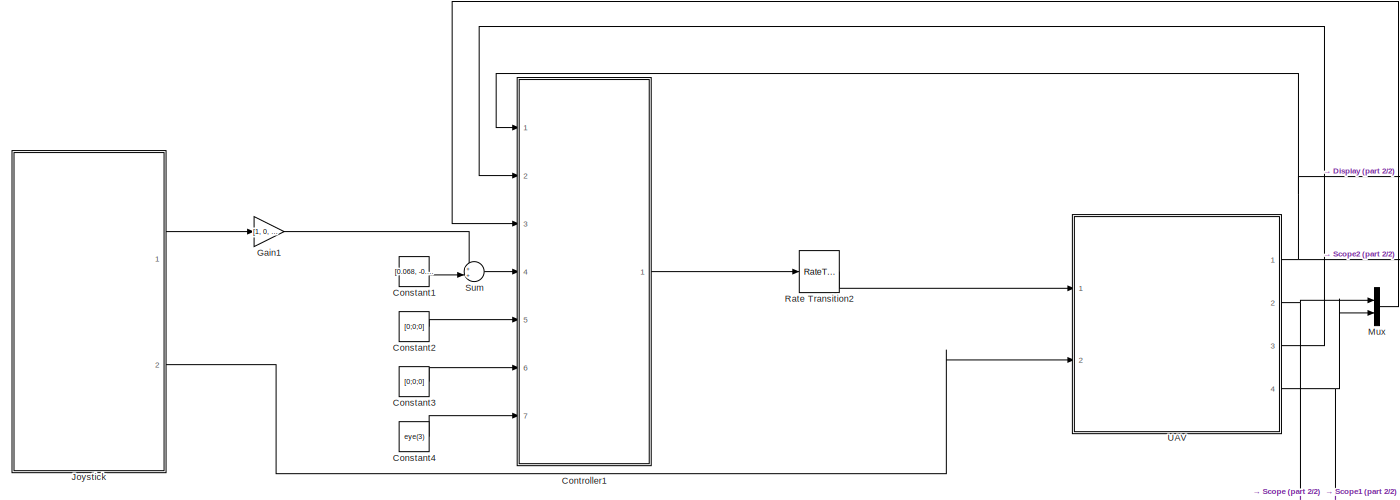
[diagram: root canvas - part 1/2, full width, middle band]
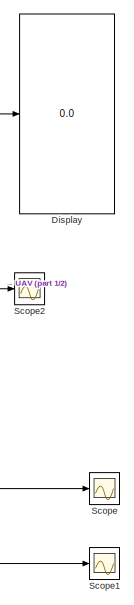
[diagram: root canvas - part 2/2, right side, full height]
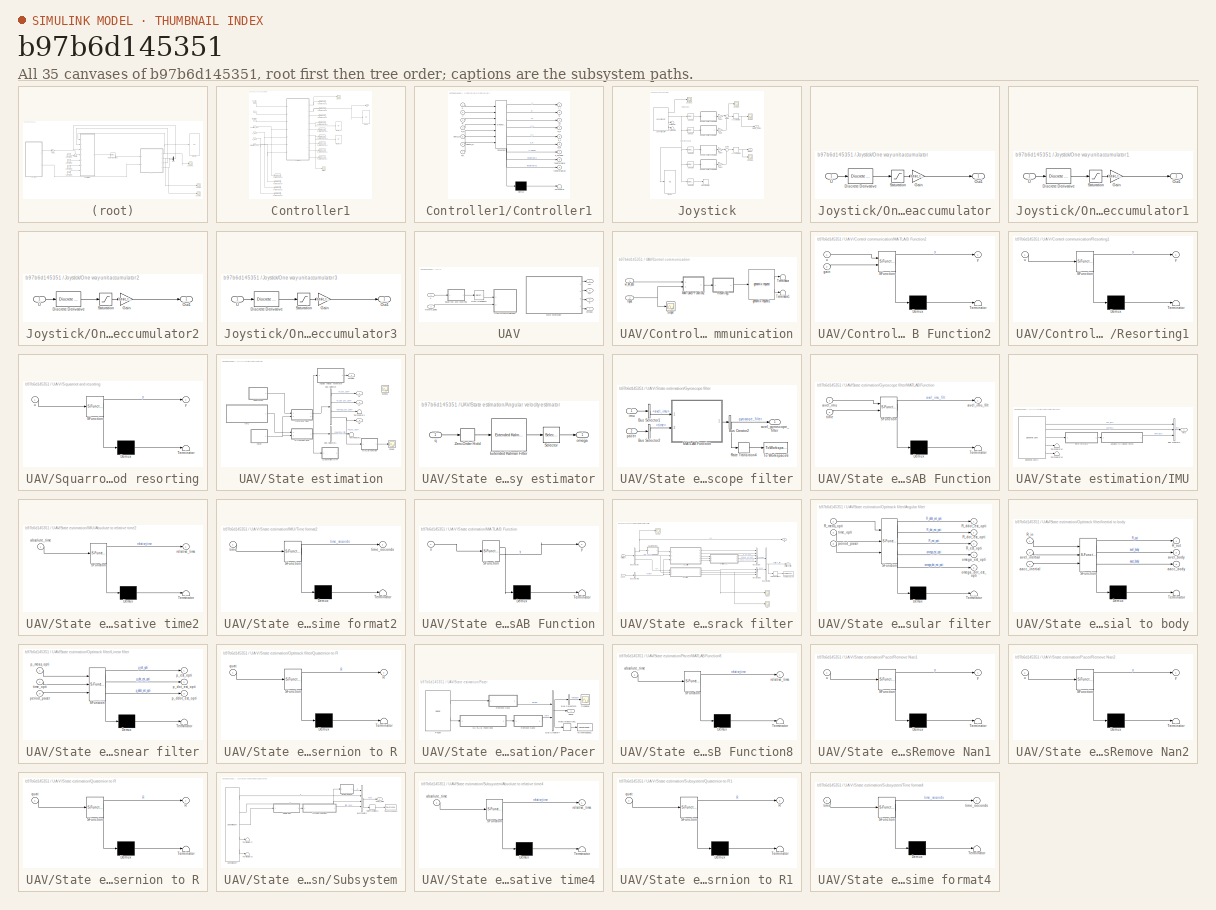
[diagram: thumbnail index - all 35 canvases of the model, root first then tree order]
MODEL slx_b97b6d145351
KIND model
CONFIG AbsTol = auto
CONFIG EnableMultiTasking = off
CONFIG FixedStep = auto
CONFIG MaxStep = auto
CONFIG MinStep = auto
CONFIG RelTol = 1e-3
CONFIG SampleTimeConstraint = Unconstrained
CONFIG SolverName = VariableStepAuto
CONFIG StartFcn = mikro.start('-a');
CONFIG StartTime = 0.0
CONFIG StopFcn = mikro.stop();
CONFIG StopTime = inf
BLOCK [Constant] Constant1
  Value = [0.068, -0.1036, 0.93]
BLOCK [Constant] Constant2
  Value = [0;0;0]
BLOCK [Constant] Constant3
  Value = [0;0;0]
BLOCK [Constant] Constant4
  Value = eye(3)
BLOCK [SubSystem] Controller1
  Ports = [7, 1]
  RequestExecContextInheritance = off
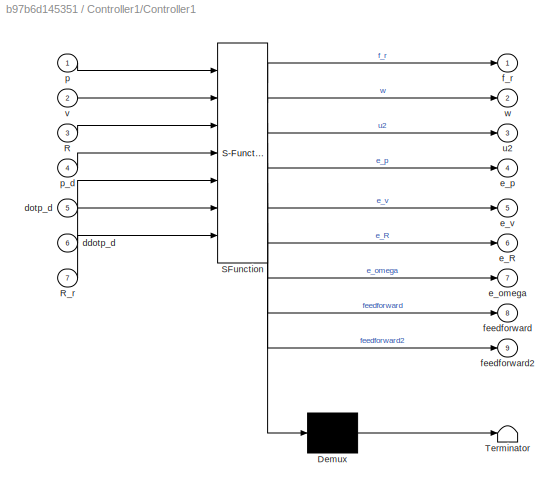
BLOCK [SubSystem] Controller1/Controller1
  ErrorFcn = Stateflow.Translate.translate
  PermitHierarchicalResolution = ExplicitOnly
  Ports = [7, 9]
  RequestExecContextInheritance = off
  SFBlockType = MATLAB Function
  TreatAsAtomicUnit = on
BLOCK [Demux] Controller1/Controller1/ Demux 
  Outputs = 1
  Ports = [1, 1]
BLOCK [S-Function] Controller1/Controller1/ SFunction 
  EnableBusSupport = on
  FunctionName = sf_sfun
  Parameters = F,J,K_R,K_p,K_v,K_w,g,m
  PortCounts = [7 10]
  Ports = [7, 10]
  SFcnIsStateOwnerBlock = off
  SFunctionDeploymentMode = off
  Tag = Stateflow S-Function 4
BLOCK [Terminator] Controller1/Controller1/ Terminator 
BLOCK [Inport] Controller1/Controller1/R
  Port = 3
BLOCK [Inport] Controller1/Controller1/R_r
  Port = 7
BLOCK [Inport] Controller1/Controller1/ddotp_d
  Port = 6
BLOCK [Inport] Controller1/Controller1/dotp_d
  Port = 5
BLOCK [Outport] Controller1/Controller1/e_R
  Port = 6
BLOCK [Outport] Controller1/Controller1/e_omega
  Port = 7
BLOCK [Outport] Controller1/Controller1/e_p
  Port = 4
BLOCK [Outport] Controller1/Controller1/e_v
  Port = 5
BLOCK [Outport] Controller1/Controller1/f_r
BLOCK [Outport] Controller1/Controller1/feedforward
  Port = 8
BLOCK [Outport] Controller1/Controller1/feedforward2
  Port = 9
BLOCK [Inport] Controller1/Controller1/p
BLOCK [Inport] Controller1/Controller1/p_d
  Port = 4
BLOCK [Outport] Controller1/Controller1/u2
  Port = 3
BLOCK [Inport] Controller1/Controller1/v
  Port = 2
BLOCK [Outport] Controller1/Controller1/w
  Port = 2
BLOCK [Display] Controller1/Display
  Decimation = 1
  Ports = [1]
BLOCK [Display] Controller1/Display1
  Decimation = 1
  Ports = [1]
BLOCK [Display] Controller1/Display2
  Decimation = 1
  Ports = [1]
BLOCK [Scope] Controller1/Error rot
  Floating = off
  NumInputPorts = 1
  Ports = [1]
  ScopeSpecificationString = Simulink.scopes.TimeScopeBlockCfg('CurrentConfiguration', extmgr.ConfigurationSet(extmgr.Configuration('Core','General UI',true),extmgr.Configuration('Core','Source UI',true),extmgr.Configuration('Sources','WiredSimulink',true,'DataLoggingVariableName','ScopeData1'),extmgr.Configuration('Visuals','Time Domain',true,'SerializedDisplays',{struct('MinYLimReal','-0.32443','MaxYLimReal','0.23175','YLab...<+1508ch>
BLOCK [Inport] Controller1/Orientation
  Port = 2
BLOCK [Inport] Controller1/Orientation_des
  Port = 7
BLOCK [Inport] Controller1/Position
BLOCK [Inport] Controller1/Position_des
  Port = 4
BLOCK [Scope] Controller1/Scope
  Floating = off
  NumInputPorts = 1
  Ports = [1]
  ScopeSpecificationString = Simulink.scopes.TimeScopeBlockCfg('CurrentConfiguration', extmgr.ConfigurationSet(extmgr.Configuration('Core','General UI',true),extmgr.Configuration('Core','Source UI',true),extmgr.Configuration('Sources','WiredSimulink',true,'DataLoggingVariableName','ScopeData6'),extmgr.Configuration('Visuals','Time Domain',true,'SerializedDisplays',{struct('MinYLimReal','-9.55411','MaxYLimReal','55.24448','YLa...<+1502ch>
BLOCK [ToWorkspace] Controller1/To Workspace1
  MaxDataPoints = inf
  Ports = [1]
  SampleTime = -1
  SaveFormat = Timeseries
  VariableName = f_r
BLOCK [ToWorkspace] Controller1/To Workspace11
  MaxDataPoints = inf
  Ports = [1]
  SampleTime = -1
  SaveFormat = Timeseries
  VariableName = e_p
BLOCK [ToWorkspace] Controller1/To Workspace13
  MaxDataPoints = inf
  Ports = [1]
  SampleTime = -1
  SaveFormat = Timeseries
  VariableName = e_v
BLOCK [ToWorkspace] Controller1/To Workspace14
  MaxDataPoints = inf
  Ports = [1]
  SampleTime = -1
  SaveFormat = Timeseries
  VariableName = e_R
BLOCK [ToWorkspace] Controller1/To Workspace15
  MaxDataPoints = inf
  Ports = [1]
  SampleTime = -1
  SaveFormat = Timeseries
  VariableName = e_omega
BLOCK [ToWorkspace] Controller1/To Workspace16
  MaxDataPoints = inf
  Ports = [1]
  SampleTime = -1
  SaveFormat = Timeseries
  VariableName = feedforward
BLOCK [ToWorkspace] Controller1/To Workspace17
  MaxDataPoints = inf
  Ports = [1]
  SampleTime = -1
  SaveFormat = Timeseries
  VariableName = feedforward2
BLOCK [ToWorkspace] Controller1/To Workspace2
  FixptAsFi = on
  MaxDataPoints = inf
  Ports = [1]
  SampleTime = -1
  SaveFormat = Timeseries
  VariableName = des_pd
BLOCK [ToWorkspace] Controller1/To Workspace3
  FixptAsFi = on
  MaxDataPoints = inf
  Ports = [1]
  SampleTime = -1
  SaveFormat = Timeseries
  VariableName = des_pdd
BLOCK [ToWorkspace] Controller1/To Workspace4
  FixptAsFi = on
  MaxDataPoints = inf
  Ports = [1]
  SampleTime = -1
  SaveFormat = Timeseries
  VariableName = ref_R
BLOCK [ToWorkspace] Controller1/To Workspace5
  MaxDataPoints = inf
  Ports = [1]
  SampleTime = -1
  SaveFormat = Timeseries
  VariableName = u1
BLOCK [ToWorkspace] Controller1/To Workspace6
  MaxDataPoints = inf
  Ports = [1]
  SampleTime = -1
  SaveFormat = Timeseries
  VariableName = u2
BLOCK [ToWorkspace] Controller1/To Workspace9
  FixptAsFi = on
  MaxDataPoints = inf
  Ports = [1]
  SampleTime = -1
  SaveFormat = Timeseries
  VariableName = des_p
BLOCK [Inport] Controller1/a_des
  Port = 6
BLOCK [Inport] Controller1/v
  Port = 3
BLOCK [Inport] Controller1/v_des
  Port = 5
BLOCK [Outport] Controller1/w* 
BLOCK [Display] Display
  Decimation = 1
  Ports = [1]
BLOCK [Gain] Gain1
  Gain = [1, 0, 0]
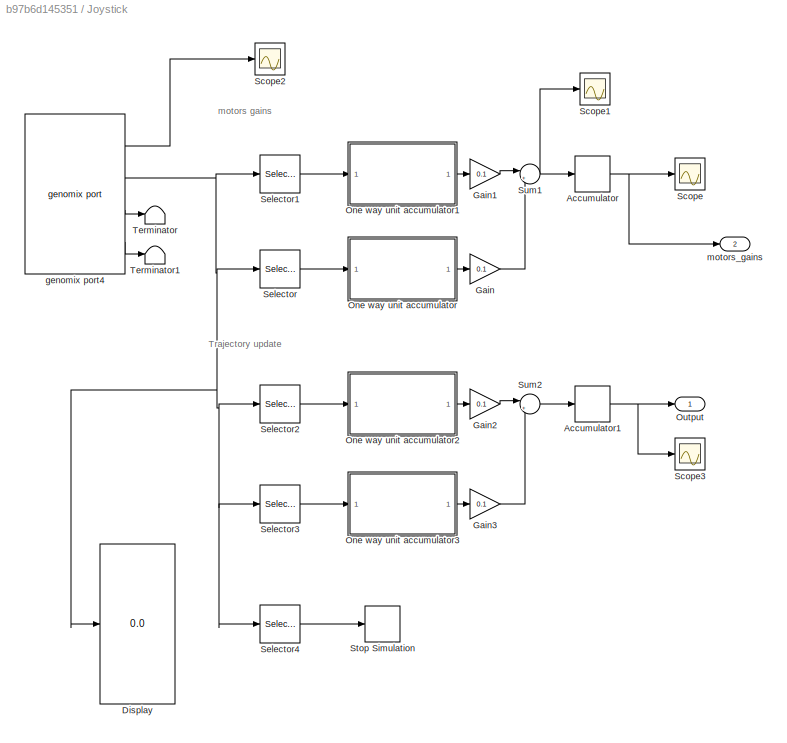
BLOCK [SubSystem] Joystick
  Ports = [0, 2]
  RequestExecContextInheritance = off
BLOCK [DiscreteIntegrator] Joystick/Accumulator
  ICPrevOutput = DiscIntNeverNeededParam
  ICPrevScaledInput = DiscIntNeverNeededParam
  InitialConditionSetting = Auto
  IntegratorMethod = Accumulation: Forward Euler
  LimitOutput = on
  LowerSaturationLimit = 0
  Ports = [1, 1]
  SampleTime = -1
  UpperSaturationLimit = 1
  gainval = 1
BLOCK [DiscreteIntegrator] Joystick/Accumulator1
  ICPrevOutput = DiscIntNeverNeededParam
  ICPrevScaledInput = DiscIntNeverNeededParam
  InitialConditionSetting = Auto
  IntegratorMethod = Accumulation: Forward Euler
  LimitOutput = on
  LowerSaturationLimit = -1
  Ports = [1, 1]
  SampleTime = -1
  UpperSaturationLimit = 1
  gainval = 1
BLOCK [Display] Joystick/Display
  Decimation = 1
  Ports = [1]
BLOCK [Gain] Joystick/Gain
  Gain = 0.1
BLOCK [Gain] Joystick/Gain1
  Gain = 0.1
BLOCK [Gain] Joystick/Gain2
  Gain = 0.1
BLOCK [Gain] Joystick/Gain3
  Gain = 0.1
BLOCK [SubSystem] Joystick/One way unit accumulator
  Ports = [1, 1]
  RequestExecContextInheritance = off
BLOCK [Reference] Joystick/One way unit accumulator/Discrete Derivative  REF=simulink/Discrete/Discrete Derivative
  Ports = [1, 1]
  SourceBlock = simulink/Discrete/Discrete Derivative
  SourceProductBaseCode = SL
  SourceType = Discrete Derivative
BLOCK [Gain] Joystick/One way unit accumulator/Gain
  Gain = basic_time_step
BLOCK [Outport] Joystick/One way unit accumulator/Out1
BLOCK [Saturate] Joystick/One way unit accumulator/Saturation
  LowerLimit = 0
  UpperLimit = inf
BLOCK [Inport] Joystick/One way unit accumulator/U
BLOCK [SubSystem] Joystick/One way unit accumulator1
  Ports = [1, 1]
  RequestExecContextInheritance = off
BLOCK [Reference] Joystick/One way unit accumulator1/Discrete Derivative  REF=simulink/Discrete/Discrete Derivative
  Ports = [1, 1]
  SourceBlock = simulink/Discrete/Discrete Derivative
  SourceProductBaseCode = SL
  SourceType = Discrete Derivative
BLOCK [Gain] Joystick/One way unit accumulator1/Gain
  Gain = basic_time_step
BLOCK [Outport] Joystick/One way unit accumulator1/Out1
BLOCK [Saturate] Joystick/One way unit accumulator1/Saturation
  LowerLimit = 0
  UpperLimit = inf
BLOCK [Inport] Joystick/One way unit accumulator1/U
BLOCK [SubSystem] Joystick/One way unit accumulator2
  Ports = [1, 1]
  RequestExecContextInheritance = off
BLOCK [Reference] Joystick/One way unit accumulator2/Discrete Derivative  REF=simulink/Discrete/Discrete Derivative
  Ports = [1, 1]
  SourceBlock = simulink/Discrete/Discrete Derivative
  SourceProductBaseCode = SL
  SourceType = Discrete Derivative
BLOCK [Gain] Joystick/One way unit accumulator2/Gain
  Gain = basic_time_step
BLOCK [Outport] Joystick/One way unit accumulator2/Out1
BLOCK [Saturate] Joystick/One way unit accumulator2/Saturation
  LowerLimit = 0
  UpperLimit = inf
BLOCK [Inport] Joystick/One way unit accumulator2/U
BLOCK [SubSystem] Joystick/One way unit accumulator3
  Ports = [1, 1]
  RequestExecContextInheritance = off
BLOCK [Reference] Joystick/One way unit accumulator3/Discrete Derivative  REF=simulink/Discrete/Discrete Derivative
  Ports = [1, 1]
  SourceBlock = simulink/Discrete/Discrete Derivative
  SourceProductBaseCode = SL
  SourceType = Discrete Derivative
BLOCK [Gain] Joystick/One way unit accumulator3/Gain
  Gain = basic_time_step
BLOCK [Outport] Joystick/One way unit accumulator3/Out1
BLOCK [Saturate] Joystick/One way unit accumulator3/Saturation
  LowerLimit = 0
  UpperLimit = inf
BLOCK [Inport] Joystick/One way unit accumulator3/U
BLOCK [Outport] Joystick/Output
BLOCK [Scope] Joystick/Scope
  Floating = off
  NumInputPorts = 1
  Ports = [1]
  ScopeSpecificationString = Simulink.scopes.TimeScopeBlockCfg('CurrentConfiguration', extmgr.ConfigurationSet(extmgr.Configuration('Core','General UI',true),extmgr.Configuration('Core','Source UI',true),extmgr.Configuration('Sources','WiredSimulink',true,'DataLoggingVariableName','ScopeData2'),extmgr.Configuration('Visuals','Time Domain',true,'SerializedDisplays',{struct('MinYLimReal','-0.05','MaxYLimReal','0.45','YLabelReal...<+1459ch>
BLOCK [Scope] Joystick/Scope1
  Floating = off
  NumInputPorts = 1
  Ports = [1]
  ScopeSpecificationString = Simulink.scopes.TimeScopeBlockCfg('CurrentConfiguration', extmgr.ConfigurationSet(extmgr.Configuration('Core','General UI',true),extmgr.Configuration('Core','Source UI',true),extmgr.Configuration('Sources','WiredSimulink',true,'DataLoggingVariableName','ScopeData3'),extmgr.Configuration('Visuals','Time Domain',true,'SerializedDisplays',{struct('MinYLimReal','-0.0125','MaxYLimReal','0.1125','YLabel...<+1464ch>
BLOCK [Scope] Joystick/Scope2
  Floating = off
  NumInputPorts = 1
  Ports = [1]
  ScopeSpecificationString = Simulink.scopes.TimeScopeBlockCfg('CurrentConfiguration', extmgr.ConfigurationSet(extmgr.Configuration('Core','General UI',true),extmgr.Configuration('Core','Source UI',true),extmgr.Configuration('Sources','WiredSimulink',true,'DataLoggingVariableName','ScopeData4'),extmgr.Configuration('Visuals','Time Domain',true,'SerializedDisplays',{struct('MinYLimReal','-36864.00000','MaxYLimReal','4096.00000...<+1819ch>
BLOCK [Scope] Joystick/Scope3
  Floating = off
  NumInputPorts = 1
  Ports = [1]
  ScopeSpecificationString = Simulink.scopes.TimeScopeBlockCfg('CurrentConfiguration', extmgr.ConfigurationSet(extmgr.Configuration('Core','General UI',true),extmgr.Configuration('Core','Source UI',true),extmgr.Configuration('Sources','WiredSimulink',true,'DataLoggingVariableName','ScopeData5'),extmgr.Configuration('Visuals','Time Domain',true,'SerializedDisplays',{struct('MinYLimReal','-1.00000','MaxYLimReal','1.00000','YLab...<+1478ch>
BLOCK [Selector] Joystick/Selector
  IndexOptions = Index vector (dialog)
  Indices = [1]
  InputPortWidth = 16
  OutputSizes = 1
  Ports = [1, 1]
BLOCK [Selector] Joystick/Selector1
  IndexOptions = Index vector (dialog)
  Indices = [2]
  InputPortWidth = 16
  OutputSizes = 1
  Ports = [1, 1]
BLOCK [Selector] Joystick/Selector2
  IndexOptions = Index vector (dialog)
  Indices = [4]
  InputPortWidth = 16
  OutputSizes = 1
  Ports = [1, 1]
BLOCK [Selector] Joystick/Selector3
  IndexOptions = Index vector (dialog)
  Indices = [3]
  InputPortWidth = 16
  OutputSizes = 1
  Ports = [1, 1]
BLOCK [Selector] Joystick/Selector4
  IndexOptions = Index vector (dialog)
  Indices = [6]
  InputPortWidth = 16
  OutputSizes = 1
  Ports = [1, 1]
BLOCK [Stop] Joystick/Stop Simulation
BLOCK [Sum] Joystick/Sum1
  Inputs = |+-
  Ports = [2, 1]
BLOCK [Sum] Joystick/Sum2
  Inputs = |+-
  Ports = [2, 1]
BLOCK [Terminator] Joystick/Terminator
BLOCK [Terminator] Joystick/Terminator1
BLOCK [Reference] Joystick/genomix port4  REF=genomix/genomix port
  AttributesFormatString = joystick/device
  Ports = [0, 4]
  SourceBlock = genomix/genomix port
  SourceProductName = genomix
  SourceType = genomix port
  UserDataPersistent = on
BLOCK [Outport] Joystick/motors_gains
  Port = 2
BLOCK [Mux] Mux
  DisplayOption = bar
  Inputs = 2
  Ports = [2, 1]
BLOCK [RateTransition] Rate Transition2
  Integrity = off
BLOCK [Scope] Scope
  Floating = off
  NumInputPorts = 1
  Ports = [1]
  ScopeSpecificationString = Simulink.scopes.TimeScopeBlockCfg('CurrentConfiguration', extmgr.ConfigurationSet(extmgr.Configuration('Core','General UI',true),extmgr.Configuration('Core','Source UI',true),extmgr.Configuration('Sources','WiredSimulink',true,'DataLoggingVariableName','ScopeData6'),extmgr.Configuration('Visuals','Time Domain',true,'SerializedDisplays',{struct('MinYLimReal','-2.01398','MaxYLimReal','1.99268','YLab...<+1525ch>
BLOCK [Scope] Scope1
  Floating = off
  NumInputPorts = 1
  Ports = [1]
  ScopeSpecificationString = Simulink.scopes.TimeScopeBlockCfg('CurrentConfiguration', extmgr.ConfigurationSet(extmgr.Configuration('Core','General UI',true),extmgr.Configuration('Core','Source UI',true),extmgr.Configuration('Sources','WiredSimulink',true,'DataLoggingVariableName','ScopeData8'),extmgr.Configuration('Visuals','Time Domain',true,'SerializedDisplays',{struct('MinYLimReal','-2.51598','MaxYLimReal','2.13346','YLab...<+1493ch>
BLOCK [Scope] Scope2
  Floating = off
  NumInputPorts = 1
  Ports = [1]
  ScopeSpecificationString = Simulink.scopes.TimeScopeBlockCfg('CurrentConfiguration', extmgr.ConfigurationSet(extmgr.Configuration('Core','General UI',true),extmgr.Configuration('Core','Source UI',true),extmgr.Configuration('Sources','WiredSimulink',true,'DataLoggingVariableName','ScopeData1'),extmgr.Configuration('Visuals','Time Domain',true,'SerializedDisplays',{struct('MinYLimReal','-0.46462','MaxYLimReal','1.12931','YLab...<+1467ch>
BLOCK [Sum] Sum
  Inputs = ++|
  Ports = [2, 1]
BLOCK [SubSystem] UAV
  Ports = [2, 4]
  RequestExecContextInheritance = off
BLOCK [Outport] UAV/<p>
BLOCK [Outport] UAV/<v>
  Port = 2
BLOCK [SubSystem] UAV/Control communication
  Ports = [2]
  RequestExecContextInheritance = off
BLOCK [Inport] UAV/Control communication/Input
  Port = 2
BLOCK [SubSystem] UAV/Control communication/MATLAB Function2
  ErrorFcn = Stateflow.Translate.translate
  PermitHierarchicalResolution = ExplicitOnly
  Ports = [2, 1]
  RequestExecContextInheritance = off
  SFBlockType = MATLAB Function
  TreatAsAtomicUnit = on
BLOCK [Demux] UAV/Control communication/MATLAB Function2/ Demux 
  Outputs = 1
  Ports = [1, 1]
BLOCK [S-Function] UAV/Control communication/MATLAB Function2/ SFunction 
  EnableBusSupport = on
  FunctionName = sf_sfun
  PortCounts = [2 2]
  Ports = [2, 2]
  SFcnIsStateOwnerBlock = off
  SFunctionDeploymentMode = off
  Tag = Stateflow S-Function 5
BLOCK [Terminator] UAV/Control communication/MATLAB Function2/ Terminator 
BLOCK [Inport] UAV/Control communication/MATLAB Function2/gain
  Port = 2
BLOCK [Inport] UAV/Control communication/MATLAB Function2/u
BLOCK [Outport] UAV/Control communication/MATLAB Function2/y
BLOCK [SubSystem] UAV/Control communication/Resorting1
  ErrorFcn = Stateflow.Translate.translate
  PermitHierarchicalResolution = ExplicitOnly
  Ports = [1, 1]
  RequestExecContextInheritance = off
  SFBlockType = MATLAB Function
  TreatAsAtomicUnit = on
BLOCK [Demux] UAV/Control communication/Resorting1/ Demux 
  Outputs = 1
  Ports = [1, 1]
BLOCK [S-Function] UAV/Control communication/Resorting1/ SFunction 
  EnableBusSupport = on
  FunctionName = sf_sfun
  PortCounts = [1 2]
  Ports = [1, 2]
  SFcnIsStateOwnerBlock = off
  SFunctionDeploymentMode = off
  Tag = Stateflow S-Function 16
BLOCK [Terminator] UAV/Control communication/Resorting1/ Terminator 
BLOCK [Inport] UAV/Control communication/Resorting1/u
BLOCK [Outport] UAV/Control communication/Resorting1/y
BLOCK [Scope] UAV/Control communication/Scope
  Floating = off
  NumInputPorts = 1
  Ports = [1]
  ScopeSpecificationString = Simulink.scopes.TimeScopeBlockCfg('CurrentConfiguration', extmgr.ConfigurationSet(extmgr.Configuration('Core','General UI',true),extmgr.Configuration('Core','Source UI',true),extmgr.Configuration('Sources','WiredSimulink',true,'DataLoggingVariableName','ScopeData7'),extmgr.Configuration('Visuals','Time Domain',true,'SerializedDisplays',{struct('MinYLimReal','-0.05','MaxYLimReal','0.45','YLabelReal...<+1449ch>
BLOCK [Terminator] UAV/Control communication/Terminator
BLOCK [Terminator] UAV/Control communication/Terminator1
BLOCK [Reference] UAV/Control communication/genomix request1  REF=genomix/genomix request
  AttributesFormatString = rotorcraft/set_velocity
  Ports = [1, 2]
  SourceBlock = genomix/genomix request
  SourceProductName = genomix
  SourceType = genomix request
  UserDataPersistent = on
BLOCK [Inport] UAV/Control communication/w_M_des
BLOCK [Outport] UAV/R
  Port = 3
BLOCK [RateTransition] UAV/Rate Transition2
  Deterministic = off
  InitialCondition = [0 0 0 0 0 0]
BLOCK [SubSystem] UAV/Squarroot and resorting
  ErrorFcn = Stateflow.Translate.translate
  PermitHierarchicalResolution = ExplicitOnly
  Ports = [1, 1]
  RequestExecContextInheritance = off
  SFBlockType = MATLAB Function
  TreatAsAtomicUnit = on
BLOCK [Demux] UAV/Squarroot and resorting/ Demux 
  Outputs = 1
  Ports = [1, 1]
BLOCK [S-Function] UAV/Squarroot and resorting/ SFunction 
  EnableBusSupport = on
  FunctionName = sf_sfun
  PortCounts = [1 2]
  Ports = [1, 2]
  SFcnIsStateOwnerBlock = off
  SFunctionDeploymentMode = off
  Tag = Stateflow S-Function 3
BLOCK [Terminator] UAV/Squarroot and resorting/ Terminator 
BLOCK [Inport] UAV/Squarroot and resorting/u
BLOCK [Outport] UAV/Squarroot and resorting/y
BLOCK [SubSystem] UAV/State estimation
  Ports = [0, 4]
  RequestExecContextInheritance = off
BLOCK [SubSystem] UAV/State estimation/Angular velocity estimator
  Ports = [1, 1]
  RequestExecContextInheritance = off
BLOCK [Reference] UAV/State estimation/Angular velocity estimator/Extended Kalman Filter  REF=sharedTrackingLibrary/Extended Kalman Filter
  Ports = [1, 1]
  SourceBlock = sharedTrackingLibrary/Extended Kalman Filter
  SourceProductBaseCode = CT,DR,TF,ID,LP,NV,AR,RO,RR,UV,VE
  SourceType = Extended Kalman Filter
BLOCK [Selector] UAV/State estimation/Angular velocity estimator/Selector
  IndexOptions = Index vector (dialog)
  Indices = [5 6 7]
  InputPortWidth = 7
  OutputSizes = 1
  Ports = [1, 1]
BLOCK [ZeroOrderHold] UAV/State estimation/Angular velocity estimator/Zero-Order Hold
  SampleTime = 0.01
BLOCK [Outport] UAV/State estimation/Angular velocity estimator/omega
BLOCK [Inport] UAV/State estimation/Angular velocity estimator/q
BLOCK [BusSelector] UAV/State estimation/Bus Selector
  OutputSignals = linear.p_est_opti,linear.p_dot_est_opti,angular.omega_est_opti,angular.R_est_opti
  Ports = [1, 4]
BLOCK [BusSelector] UAV/State estimation/Bus Selector1
  OutputSignals = avel_imu_filt
  Ports = [1, 1]
BLOCK [SubSystem] UAV/State estimation/Gyroscope filter
  Ports = [2, 1]
  RequestExecContextInheritance = off
BLOCK [BusCreator] UAV/State estimation/Gyroscope filter/Bus Creator2
  DisplayOption = bar
  InheritFromInputs = on
  Inputs = 1
  Ports = [1, 1]
BLOCK [BusSelector] UAV/State estimation/Gyroscope filter/Bus Selector1
  OutputSignals = avel_imu
  Ports = [1, 1]
BLOCK [BusSelector] UAV/State estimation/Gyroscope filter/Bus Selector2
  OutputSignals = time
  Ports = [1, 1]
BLOCK [SubSystem] UAV/State estimation/Gyroscope filter/MATLAB Function
  ErrorFcn = Stateflow.Translate.translate
  PermitHierarchicalResolution = ExplicitOnly
  Ports = [2, 1]
  RequestExecContextInheritance = off
  SFBlockType = MATLAB Function
  TreatAsAtomicUnit = on
BLOCK [Demux] UAV/State estimation/Gyroscope filter/MATLAB Function/ Demux 
  Outputs = 1
  Ports = [1, 1]
BLOCK [S-Function] UAV/State estimation/Gyroscope filter/MATLAB Function/ SFunction 
  EnableBusSupport = on
  FunctionName = sf_sfun
  PortCounts = [2 2]
  Ports = [2, 2]
  SFcnIsStateOwnerBlock = off
  SFunctionDeploymentMode = off
  Tag = Stateflow S-Function 32
BLOCK [Terminator] UAV/State estimation/Gyroscope filter/MATLAB Function/ Terminator 
BLOCK [Inport] UAV/State estimation/Gyroscope filter/MATLAB Function/avel_imu
BLOCK [Outport] UAV/State estimation/Gyroscope filter/MATLAB Function/avel_imu_filt
  VectorParamsAs1DForOutWhenUnconnected = off
BLOCK [Inport] UAV/State estimation/Gyroscope filter/MATLAB Function/time
  Port = 2
BLOCK [RateTransition] UAV/State estimation/Gyroscope filter/Rate Transition4
  InitialCondition = -1
  OutPortSampleTime = init.log_time_step
BLOCK [ToWorkspace] UAV/State estimation/Gyroscope filter/To Workspace6
  FixptAsFi = on
  MaxDataPoints = inf
  Ports = [1]
  SampleTime = init.log_time_step
  SaveFormat = Timeseries
  VariableName = gyroscope_filter
BLOCK [Outport] UAV/State estimation/Gyroscope filter/avel_gyroscope_filter
  VectorParamsAs1DForOutWhenUnconnected = off
BLOCK [Inport] UAV/State estimation/Gyroscope filter/imu
BLOCK [Inport] UAV/State estimation/Gyroscope filter/pacer
  Port = 2
BLOCK [SubSystem] UAV/State estimation/IMU
  Ports = [0, 1]
  RequestExecContextInheritance = off
BLOCK [SubSystem] UAV/State estimation/IMU/Absolute to relative time2
  ErrorFcn = Stateflow.Translate.translate
  PermitHierarchicalResolution = ExplicitOnly
  Ports = [1, 1]
  RequestExecContextInheritance = off
  SFBlockType = MATLAB Function
  TreatAsAtomicUnit = on
BLOCK [Demux] UAV/State estimation/IMU/Absolute to relative time2/ Demux 
  Outputs = 1
  Ports = [1, 1]
BLOCK [S-Function] UAV/State estimation/IMU/Absolute to relative time2/ SFunction 
  EnableBusSupport = on
  FunctionName = sf_sfun
  PortCounts = [1 2]
  Ports = [1, 2]
  SFcnIsStateOwnerBlock = off
  SFunctionDeploymentMode = off
  Tag = Stateflow S-Function 8
BLOCK [Terminator] UAV/State estimation/IMU/Absolute to relative time2/ Terminator 
BLOCK [Inport] UAV/State estimation/IMU/Absolute to relative time2/absolute_time
BLOCK [Outport] UAV/State estimation/IMU/Absolute to relative time2/relative_time
  VectorParamsAs1DForOutWhenUnconnected = off
BLOCK [BusCreator] UAV/State estimation/IMU/Bus Creator2
  DisplayOption = bar
  InheritFromInputs = on
  Inputs = 3
  Ports = [3, 1]
BLOCK [Terminator] UAV/State estimation/IMU/Terminator12
BLOCK [Terminator] UAV/State estimation/IMU/Terminator13
BLOCK [SubSystem] UAV/State estimation/IMU/Time format2
  ErrorFcn = Stateflow.Translate.translate
  PermitHierarchicalResolution = ExplicitOnly
  Ports = [1, 1]
  RequestExecContextInheritance = off
  SFBlockType = MATLAB Function
  TreatAsAtomicUnit = on
BLOCK [Demux] UAV/State estimation/IMU/Time format2/ Demux 
  Outputs = 1
  Ports = [1, 1]
BLOCK [S-Function] UAV/State estimation/IMU/Time format2/ SFunction 
  EnableBusSupport = on
  FunctionName = sf_sfun
  PortCounts = [1 2]
  Ports = [1, 2]
  SFcnIsStateOwnerBlock = off
  SFunctionDeploymentMode = off
  Tag = Stateflow S-Function 2
BLOCK [Terminator] UAV/State estimation/IMU/Time format2/ Terminator 
BLOCK [Inport] UAV/State estimation/IMU/Time format2/time
BLOCK [Outport] UAV/State estimation/IMU/Time format2/time_seconds
  VectorParamsAs1DForOutWhenUnconnected = off
BLOCK [Reference] UAV/State estimation/IMU/genomix port1  REF=genomix/genomix port
  AttributesFormatString = rotorcraft/imu
  Ports = [0, 5]
  SourceBlock = genomix/genomix port
  SourceProductName = genomix
  SourceType = genomix port
  UserDataPersistent = on
BLOCK [Outport] UAV/State estimation/IMU/imu
BLOCK [SubSystem] UAV/State estimation/MATLAB Function
  ErrorFcn = Stateflow.Translate.translate
  PermitHierarchicalResolution = ExplicitOnly
  Ports = [1, 1]
  RequestExecContextInheritance = off
  SFBlockType = MATLAB Function
  TreatAsAtomicUnit = on
BLOCK [Demux] UAV/State estimation/MATLAB Function/ Demux 
  Outputs = 1
  Ports = [1, 1]
BLOCK [S-Function] UAV/State estimation/MATLAB Function/ SFunction 
  EnableBusSupport = on
  FunctionName = sf_sfun
  PortCounts = [1 2]
  Ports = [1, 2]
  SFcnIsStateOwnerBlock = off
  SFunctionDeploymentMode = off
  Tag = Stateflow S-Function 12
BLOCK [Terminator] UAV/State estimation/MATLAB Function/ Terminator 
BLOCK [Inport] UAV/State estimation/MATLAB Function/u
BLOCK [Outport] UAV/State estimation/MATLAB Function/y
BLOCK [SubSystem] UAV/State estimation/Optitrack filter
  Ports = [2, 2]
  RequestExecContextInheritance = off
BLOCK [SubSystem] UAV/State estimation/Optitrack filter/Angular filter
  ErrorFcn = Stateflow.Translate.translate
  PermitHierarchicalResolution = ExplicitOnly
  Ports = [3, 5]
  RequestExecContextInheritance = off
  SFBlockType = MATLAB Function
  TreatAsAtomicUnit = on
BLOCK [Demux] UAV/State estimation/Optitrack filter/Angular filter/ Demux 
  Outputs = 1
  Ports = [1, 1]
BLOCK [S-Function] UAV/State estimation/Optitrack filter/Angular filter/ SFunction 
  EnableBusSupport = on
  FunctionName = sf_sfun
  PortCounts = [3 6]
  Ports = [3, 6]
  SFcnIsStateOwnerBlock = off
  SFunctionDeploymentMode = off
  Tag = Stateflow S-Function 10
BLOCK [Terminator] UAV/State estimation/Optitrack filter/Angular filter/ Terminator 
BLOCK [Outport] UAV/State estimation/Optitrack filter/Angular filter/R_ddot_est_opti
  VectorParamsAs1DForOutWhenUnconnected = off
BLOCK [Outport] UAV/State estimation/Optitrack filter/Angular filter/R_dot_est_opti
  Port = 2
  VectorParamsAs1DForOutWhenUnconnected = off
BLOCK [Outport] UAV/State estimation/Optitrack filter/Angular filter/R_est_opti
  Port = 3
  VectorParamsAs1DForOutWhenUnconnected = off
BLOCK [Inport] UAV/State estimation/Optitrack filter/Angular filter/R_meas_opti
BLOCK [Outport] UAV/State estimation/Optitrack filter/Angular filter/omega_dot_est_opti
  Port = 5
  VectorParamsAs1DForOutWhenUnconnected = off
BLOCK [Outport] UAV/State estimation/Optitrack filter/Angular filter/omega_est_opti
  Port = 4
  VectorParamsAs1DForOutWhenUnconnected = off
BLOCK [Inport] UAV/State estimation/Optitrack filter/Angular filter/period_pacer
  Port = 3
BLOCK [Inport] UAV/State estimation/Optitrack filter/Angular filter/time_opti
  Port = 2
BLOCK [BusCreator] UAV/State estimation/Optitrack filter/Bus Creator
  DisplayOption = bar
  InheritFromInputs = on
  Inputs = 5
  Ports = [5, 1]
BLOCK [BusCreator] UAV/State estimation/Optitrack filter/Bus Creator1
  DisplayOption = bar
  InheritFromInputs = on
  Inputs = 3
  Ports = [3, 1]
BLOCK [BusCreator] UAV/State estimation/Optitrack filter/Bus Creator2
  DisplayOption = bar
  InheritFromInputs = on
  Inputs = 2
  Ports = [2, 1]
BLOCK [BusSelector] UAV/State estimation/Optitrack filter/Bus Selector
  OutputSignals = q,time_vicon,p
  Ports = [1, 3]
BLOCK [BusSelector] UAV/State estimation/Optitrack filter/Bus Selector1
  OutputSignals = period
  Ports = [1, 1]
BLOCK [SubSystem] UAV/State estimation/Optitrack filter/Inertial to body
  ErrorFcn = Stateflow.Translate.translate
  NameLocation = top
  PermitHierarchicalResolution = ExplicitOnly
  Ports = [3, 3]
  RequestExecContextInheritance = off
  SFBlockType = MATLAB Function
  SystemSampleTime = motion_capture_rate
BLOCK [Demux] UAV/State estimation/Optitrack filter/Inertial to body/ Demux 
  Outputs = 1
  Ports = [1, 1]
BLOCK [S-Function] UAV/State estimation/Optitrack filter/Inertial to body/ SFunction 
  EnableBusSupport = on
  FunctionName = sf_sfun
  PortCounts = [3 4]
  Ports = [3, 4]
  SFcnIsStateOwnerBlock = off
  SFunctionDeploymentMode = off
  Tag = Stateflow S-Function 27
BLOCK [Terminator] UAV/State estimation/Optitrack filter/Inertial to body/ Terminator 
BLOCK [Inport] UAV/State estimation/Optitrack filter/Inertial to body/R_in
BLOCK [Outport] UAV/State estimation/Optitrack filter/Inertial to body/R_out
  VectorParamsAs1DForOutWhenUnconnected = off
BLOCK [Outport] UAV/State estimation/Optitrack filter/Inertial to body/aacc_body
  Port = 3
  VectorParamsAs1DForOutWhenUnconnected = off
BLOCK [Inport] UAV/State estimation/Optitrack filter/Inertial to body/aacc_inertial
  Port = 3
BLOCK [Outport] UAV/State estimation/Optitrack filter/Inertial to body/avel_body
  Port = 2
  VectorParamsAs1DForOutWhenUnconnected = off
BLOCK [Inport] UAV/State estimation/Optitrack filter/Inertial to body/avel_inertial
  Port = 2
BLOCK [SubSystem] UAV/State estimation/Optitrack filter/Linear filter
  ErrorFcn = Stateflow.Translate.translate
  PermitHierarchicalResolution = ExplicitOnly
  Ports = [3, 3]
  RequestExecContextInheritance = off
  SFBlockType = MATLAB Function
  TreatAsAtomicUnit = on
BLOCK [Demux] UAV/State estimation/Optitrack filter/Linear filter/ Demux 
  Outputs = 1
  Ports = [1, 1]
BLOCK [S-Function] UAV/State estimation/Optitrack filter/Linear filter/ SFunction 
  EnableBusSupport = on
  FunctionName = sf_sfun
  PortCounts = [3 4]
  Ports = [3, 4]
  SFcnIsStateOwnerBlock = off
  SFunctionDeploymentMode = off
  Tag = Stateflow S-Function 30
BLOCK [Terminator] UAV/State estimation/Optitrack filter/Linear filter/ Terminator 
BLOCK [Outport] UAV/State estimation/Optitrack filter/Linear filter/p_ddot_est_opti
  Port = 3
  VectorParamsAs1DForOutWhenUnconnected = off
BLOCK [Outport] UAV/State estimation/Optitrack filter/Linear filter/p_dot_est_opti
  Port = 2
  VectorParamsAs1DForOutWhenUnconnected = off
BLOCK [Outport] UAV/State estimation/Optitrack filter/Linear filter/p_est_opti
  VectorParamsAs1DForOutWhenUnconnected = off
BLOCK [Inport] UAV/State estimation/Optitrack filter/Linear filter/p_meas_opti
BLOCK [Inport] UAV/State estimation/Optitrack filter/Linear filter/period_pacer
  Port = 3
BLOCK [Inport] UAV/State estimation/Optitrack filter/Linear filter/time_opti
  Port = 2
BLOCK [SubSystem] UAV/State estimation/Optitrack filter/Quaternion to R
  ErrorFcn = Stateflow.Translate.translate
  NameLocation = top
  PermitHierarchicalResolution = ExplicitOnly
  Ports = [1, 1]
  RequestExecContextInheritance = off
  SFBlockType = MATLAB Function
  SystemSampleTime = motion_capture_rate
BLOCK [Demux] UAV/State estimation/Optitrack filter/Quaternion to R/ Demux 
  Outputs = 1
  Ports = [1, 1]
BLOCK [S-Function] UAV/State estimation/Optitrack filter/Quaternion to R/ SFunction 
  EnableBusSupport = on
  FunctionName = sf_sfun
  PortCounts = [1 2]
  Ports = [1, 2]
  SFcnIsStateOwnerBlock = off
  SFunctionDeploymentMode = off
  Tag = Stateflow S-Function 11
BLOCK [Terminator] UAV/State estimation/Optitrack filter/Quaternion to R/ Terminator 
BLOCK [Outport] UAV/State estimation/Optitrack filter/Quaternion to R/R
  VectorParamsAs1DForOutWhenUnconnected = off
BLOCK [Inport] UAV/State estimation/Optitrack filter/Quaternion to R/quat
BLOCK [RateTransition] UAV/State estimation/Optitrack filter/Rate Transition4
  InitialCondition = -1
  OutPortSampleTime = init.log_time_step
BLOCK [Scope] UAV/State estimation/Optitrack filter/Scope
  Floating = off
  NumInputPorts = 1
  Ports = [1]
  ScopeSpecificationString = Simulink.scopes.TimeScopeBlockCfg('CurrentConfiguration', extmgr.ConfigurationSet(extmgr.Configuration('Core','General UI',true),extmgr.Configuration('Core','Source UI',true),extmgr.Configuration('Sources','WiredSimulink',true,'DataLoggingVariableName','ScopeData3'),extmgr.Configuration('Visuals','Time Domain',true,'SerializedDisplays',{struct('MinYLimReal','-0.20305','MaxYLimReal','1.12865','YLab...<+1457ch>
BLOCK [ToWorkspace] UAV/State estimation/Optitrack filter/To Workspace6
  FixptAsFi = on
  MaxDataPoints = inf
  Ports = [1]
  SampleTime = init.log_time_step
  SaveFormat = Timeseries
  VariableName = optitrack_filter
BLOCK [Inport] UAV/State estimation/Optitrack filter/optitrack
BLOCK [Outport] UAV/State estimation/Optitrack filter/optitrack_filter
  VectorParamsAs1DForOutWhenUnconnected = off
BLOCK [Inport] UAV/State estimation/Optitrack filter/pacer
  Port = 2
BLOCK [Scope] UAV/State estimation/Optitrack filter/pos
  Floating = off
  NumInputPorts = 1
  Ports = [1]
  ScopeSpecificationString = Simulink.scopes.TimeScopeBlockCfg('CurrentConfiguration', extmgr.ConfigurationSet(extmgr.Configuration('Core','General UI',true),extmgr.Configuration('Core','Source UI',true),extmgr.Configuration('Sources','WiredSimulink',true,'DataLoggingVariableName','ScopeData4'),extmgr.Configuration('Visuals','Time Domain',true,'SerializedDisplays',{struct('MinYLimReal','-0.46469','MaxYLimReal','1.12932','YLab...<+1525ch>
BLOCK [Outport] UAV/State estimation/Optitrack filter/q
  Port = 2
BLOCK [Scope] UAV/State estimation/Optitrack filter/vel
  Floating = off
  NumInputPorts = 1
  Ports = [1]
  ScopeSpecificationString = Simulink.scopes.TimeScopeBlockCfg('CurrentConfiguration', extmgr.ConfigurationSet(extmgr.Configuration('Core','General UI',true),extmgr.Configuration('Core','Source UI',true),extmgr.Configuration('Sources','WiredSimulink',true,'DataLoggingVariableName','ScopeData5'),extmgr.Configuration('Visuals','Time Domain',true,'SerializedDisplays',{struct('MinYLimReal','-7.27564','MaxYLimReal','1.591','YLabel...<+1533ch>
BLOCK [SubSystem] UAV/State estimation/Pacer
  Ports = [0, 1]
  RequestExecContextInheritance = off
BLOCK [BusCreator] UAV/State estimation/Pacer/Bus Creator4
  DisplayOption = bar
  InheritFromInputs = on
  Inputs = 2
  Ports = [2, 1]
BLOCK [BusSelector] UAV/State estimation/Pacer/Bus Selector5
  OutputSignals = period
  Ports = [1, 1]
BLOCK [SubSystem] UAV/State estimation/Pacer/MATLAB Function8
  ErrorFcn = Stateflow.Translate.translate
  PermitHierarchicalResolution = ExplicitOnly
  Ports = [1, 1]
  RequestExecContextInheritance = off
  SFBlockType = MATLAB Function
  TreatAsAtomicUnit = on
BLOCK [Demux] UAV/State estimation/Pacer/MATLAB Function8/ Demux 
  Outputs = 1
  Ports = [1, 1]
BLOCK [S-Function] UAV/State estimation/Pacer/MATLAB Function8/ SFunction 
  EnableBusSupport = on
  FunctionName = sf_sfun
  PortCounts = [1 2]
  Ports = [1, 2]
  SFcnIsStateOwnerBlock = off
  SFunctionDeploymentMode = off
  Tag = Stateflow S-Function 1
BLOCK [Terminator] UAV/State estimation/Pacer/MATLAB Function8/ Terminator 
BLOCK [Inport] UAV/State estimation/Pacer/MATLAB Function8/absolute_time
BLOCK [Outport] UAV/State estimation/Pacer/MATLAB Function8/relative_time
  VectorParamsAs1DForOutWhenUnconnected = off
BLOCK [Reference] UAV/State estimation/Pacer/Pacer  REF=genomix/pacer
  Ports = [0, 2]
  Priority = 0
  SourceBlock = genomix/pacer
  SourceProductName = genomix
  SourceType = pacer
BLOCK [RateTransition] UAV/State estimation/Pacer/Rate Transition1
  InitialCondition = -1
  OutPortSampleTime = init.log_time_step
BLOCK [SubSystem] UAV/State estimation/Pacer/Remove Nan1
  ErrorFcn = Stateflow.Translate.translate
  PermitHierarchicalResolution = ExplicitOnly
  Ports = [1, 1]
  RequestExecContextInheritance = off
  SFBlockType = MATLAB Function
  SystemSampleTime = motion_capture_rate
BLOCK [Demux] UAV/State estimation/Pacer/Remove Nan1/ Demux 
  Outputs = 1
  Ports = [1, 1]
BLOCK [S-Function] UAV/State estimation/Pacer/Remove Nan1/ SFunction 
  EnableBusSupport = on
  FunctionName = sf_sfun
  PortCounts = [1 2]
  Ports = [1, 2]
  SFcnIsStateOwnerBlock = off
  SFunctionDeploymentMode = off
  Tag = Stateflow S-Function 40
BLOCK [Terminator] UAV/State estimation/Pacer/Remove Nan1/ Terminator 
BLOCK [Inport] UAV/State estimation/Pacer/Remove Nan1/u
BLOCK [Outport] UAV/State estimation/Pacer/Remove Nan1/y
  VectorParamsAs1DForOutWhenUnconnected = off
BLOCK [SubSystem] UAV/State estimation/Pacer/Remove Nan2
  ErrorFcn = Stateflow.Translate.translate
  PermitHierarchicalResolution = ExplicitOnly
  Ports = [1, 1]
  RequestExecContextInheritance = off
  SFBlockType = MATLAB Function
  SystemSampleTime = motion_capture_rate
BLOCK [Demux] UAV/State estimation/Pacer/Remove Nan2/ Demux 
  Outputs = 1
  Ports = [1, 1]
BLOCK [S-Function] UAV/State estimation/Pacer/Remove Nan2/ SFunction 
  EnableBusSupport = on
  FunctionName = sf_sfun
  PortCounts = [1 2]
  Ports = [1, 2]
  SFcnIsStateOwnerBlock = off
  SFunctionDeploymentMode = off
  Tag = Stateflow S-Function 68
BLOCK [Terminator] UAV/State estimation/Pacer/Remove Nan2/ Terminator 
BLOCK [Inport] UAV/State estimation/Pacer/Remove Nan2/u
BLOCK [Outport] UAV/State estimation/Pacer/Remove Nan2/y
  VectorParamsAs1DForOutWhenUnconnected = off
BLOCK [Scope] UAV/State estimation/Pacer/Scope18
  Floating = off
  NumInputPorts = 1
  Ports = [1]
  ScopeSpecificationString = Simulink.scopes.TimeScopeBlockCfg('CurrentConfiguration', extmgr.ConfigurationSet(extmgr.Configuration('Core','General UI',true),extmgr.Configuration('Core','Source UI',true),extmgr.Configuration('Sources','WiredSimulink',true,'DataLoggingVariableName','ScopeData1'),extmgr.Configuration('Visuals','Time Domain',true,'SerializedDisplays',{struct('MinYLimReal','-0.00107','MaxYLimReal','0.01907','YLab...<+1461ch>
BLOCK [ToWorkspace] UAV/State estimation/Pacer/To Workspace1
  FixptAsFi = on
  MaxDataPoints = inf
  Ports = [1]
  SampleTime = init.log_time_step
  SaveFormat = Timeseries
  VariableName = pacer
BLOCK [Outport] UAV/State estimation/Pacer/pacer
BLOCK [SubSystem] UAV/State estimation/Quaternion to R
  ErrorFcn = Stateflow.Translate.translate
  NameLocation = top
  PermitHierarchicalResolution = ExplicitOnly
  Ports = [1, 1]
  RequestExecContextInheritance = off
  SFBlockType = MATLAB Function
  SystemSampleTime = motion_capture_rate
BLOCK [Demux] UAV/State estimation/Quaternion to R/ Demux 
  Outputs = 1
  Ports = [1, 1]
BLOCK [S-Function] UAV/State estimation/Quaternion to R/ SFunction 
  EnableBusSupport = on
  FunctionName = sf_sfun
  PortCounts = [1 2]
  Ports = [1, 2]
  SFcnIsStateOwnerBlock = off
  SFunctionDeploymentMode = off
  Tag = Stateflow S-Function 9
BLOCK [Terminator] UAV/State estimation/Quaternion to R/ Terminator 
BLOCK [Outport] UAV/State estimation/Quaternion to R/R
  VectorParamsAs1DForOutWhenUnconnected = off
BLOCK [Inport] UAV/State estimation/Quaternion to R/quat
BLOCK [Outport] UAV/State estimation/R
  Port = 3
BLOCK [Scope] UAV/State estimation/Scope
  Floating = off
  NumInputPorts = 1
  Ports = [1]
  ScopeSpecificationString = Simulink.scopes.TimeScopeBlockCfg('CurrentConfiguration', extmgr.ConfigurationSet(extmgr.Configuration('Core','General UI',true),extmgr.Configuration('Core','Source UI',true),extmgr.Configuration('Sources','WiredSimulink',true,'DataLoggingVariableName','ScopeData2'),extmgr.Configuration('Visuals','Time Domain',true,'SerializedDisplays',{struct('MinYLimReal','-224.99051','MaxYLimReal','224.99388','...<+1480ch>
BLOCK [Scope] UAV/State estimation/Scope1
  Floating = off
  NumInputPorts = 1
  Ports = [1]
  ScopeSpecificationString = Simulink.scopes.TimeScopeBlockCfg('CurrentConfiguration', extmgr.ConfigurationSet(extmgr.Configuration('Core','General UI',true),extmgr.Configuration('Core','Source UI',true),extmgr.Configuration('Sources','WiredSimulink',true,'DataLoggingVariableName','ScopeData3'),extmgr.Configuration('Visuals','Time Domain',true,'SerializedDisplays',{struct('MinYLimReal','-1.00000','MaxYLimReal','1.00000','YLab...<+1470ch>
BLOCK [SubSystem] UAV/State estimation/Subsystem
  Ports = [0, 1]
  RequestExecContextInheritance = off
BLOCK [SubSystem] UAV/State estimation/Subsystem/Absolute to relative time4
  ErrorFcn = Stateflow.Translate.translate
  PermitHierarchicalResolution = ExplicitOnly
  Ports = [1, 1]
  RequestExecContextInheritance = off
  SFBlockType = MATLAB Function
  TreatAsAtomicUnit = on
BLOCK [Demux] UAV/State estimation/Subsystem/Absolute to relative time4/ Demux 
  Outputs = 1
  Ports = [1, 1]
BLOCK [S-Function] UAV/State estimation/Subsystem/Absolute to relative time4/ SFunction 
  EnableBusSupport = on
  FunctionName = sf_sfun
  PortCounts = [1 2]
  Ports = [1, 2]
  SFcnIsStateOwnerBlock = off
  SFunctionDeploymentMode = off
  Tag = Stateflow S-Function 7
BLOCK [Terminator] UAV/State estimation/Subsystem/Absolute to relative time4/ Terminator 
BLOCK [Inport] UAV/State estimation/Subsystem/Absolute to relative time4/absolute_time
BLOCK [Outport] UAV/State estimation/Subsystem/Absolute to relative time4/relative_time
  VectorParamsAs1DForOutWhenUnconnected = off
BLOCK [BusCreator] UAV/State estimation/Subsystem/Bus Creator1
  DisplayOption = bar
  InheritFromInputs = on
  Inputs = 4
  Ports = [4, 1]
BLOCK [SubSystem] UAV/State estimation/Subsystem/Quaternion to R1
  ErrorFcn = Stateflow.Translate.translate
  NameLocation = top
  PermitHierarchicalResolution = ExplicitOnly
  Ports = [1, 1]
  RequestExecContextInheritance = off
  SFBlockType = MATLAB Function
  SystemSampleTime = motion_capture_rate
BLOCK [Demux] UAV/State estimation/Subsystem/Quaternion to R1/ Demux 
  Outputs = 1
  Ports = [1, 1]
BLOCK [S-Function] UAV/State estimation/Subsystem/Quaternion to R1/ SFunction 
  EnableBusSupport = on
  FunctionName = sf_sfun
  PortCounts = [1 2]
  Ports = [1, 2]
  SFcnIsStateOwnerBlock = off
  SFunctionDeploymentMode = off
  Tag = Stateflow S-Function 28
BLOCK [Terminator] UAV/State estimation/Subsystem/Quaternion to R1/ Terminator 
BLOCK [Outport] UAV/State estimation/Subsystem/Quaternion to R1/R
  VectorParamsAs1DForOutWhenUnconnected = off
BLOCK [Inport] UAV/State estimation/Subsystem/Quaternion to R1/quat
BLOCK [RateTransition] UAV/State estimation/Subsystem/Rate Transition11
  InitialCondition = -1
  OutPortSampleTime = init.log_time_step
BLOCK [Terminator] UAV/State estimation/Subsystem/Terminator16
BLOCK [Terminator] UAV/State estimation/Subsystem/Terminator17
BLOCK [SubSystem] UAV/State estimation/Subsystem/Time format4
  ErrorFcn = Stateflow.Translate.translate
  PermitHierarchicalResolution = ExplicitOnly
  Ports = [1, 1]
  RequestExecContextInheritance = off
  SFBlockType = MATLAB Function
  TreatAsAtomicUnit = on
BLOCK [Demux] UAV/State estimation/Subsystem/Time format4/ Demux 
  Outputs = 1
  Ports = [1, 1]
BLOCK [S-Function] UAV/State estimation/Subsystem/Time format4/ SFunction 
  EnableBusSupport = on
  FunctionName = sf_sfun
  PortCounts = [1 2]
  Ports = [1, 2]
  SFcnIsStateOwnerBlock = off
  SFunctionDeploymentMode = off
  Tag = Stateflow S-Function 6
BLOCK [Terminator] UAV/State estimation/Subsystem/Time format4/ Terminator 
BLOCK [Inport] UAV/State estimation/Subsystem/Time format4/time
BLOCK [Outport] UAV/State estimation/Subsystem/Time format4/time_seconds
  VectorParamsAs1DForOutWhenUnconnected = off
BLOCK [ToWorkspace] UAV/State estimation/Subsystem/To Workspace3
  FixptAsFi = on
  MaxDataPoints = inf
  Ports = [1]
  SampleTime = init.log_time_step
  SaveFormat = Timeseries
  VariableName = vicon
BLOCK [Reference] UAV/State estimation/Subsystem/genomix port  REF=genomix/genomix port
  AttributesFormatString = vicon/bodies
  Ports = [0, 5]
  SourceBlock = genomix/genomix port
  SourceProductName = genomix
  SourceType = genomix port
  UserDataPersistent = on
BLOCK [Outport] UAV/State estimation/Subsystem/vicon_state
  VectorParamsAs1DForOutWhenUnconnected = off
BLOCK [Terminator] UAV/State estimation/Terminator1
BLOCK [Terminator] UAV/State estimation/Terminator2
BLOCK [Outport] UAV/State estimation/omega
  Port = 4
BLOCK [Outport] UAV/State estimation/p
BLOCK [Outport] UAV/State estimation/v
  Port = 2
BLOCK [Inport] UAV/motors_gains
  Port = 2
BLOCK [Outport] UAV/omega
  Port = 4
BLOCK [Inport] UAV/u
ANNOTATION Joystick: Trajectory update
ANNOTATION Joystick: motors gains
LINE Constant1:1 -> Sum:2
LINE Constant2:1 -> Controller1:5
LINE Constant3:1 -> Controller1:6
LINE Constant4:1 -> Controller1:7
NET Controller1/Controller1:1 -> Controller1/Scope:1, Controller1/To Workspace1:1
NET Controller1/Controller1:2 -> Controller1/Display:1, Controller1/To Workspace5:1, Controller1/w* :1
LINE Controller1/Controller1:3 -> Controller1/To Workspace6:1
NET Controller1/Controller1:4 -> Controller1/Display1:1, Controller1/To Workspace11:1
LINE Controller1/Controller1:5 -> Controller1/To Workspace13:1
NET Controller1/Controller1:6 -> Controller1/Display2:1, Controller1/Error rot:1, Controller1/To Workspace14:1
LINE Controller1/Controller1:7 -> Controller1/To Workspace15:1
LINE Controller1/Controller1:8 -> Controller1/To Workspace16:1
LINE Controller1/Controller1:9 -> Controller1/To Workspace17:1
LINE Controller1/Orientation:1 -> Controller1/Controller1:3
NET Controller1/Orientation_des:1 -> Controller1/Controller1:7, Controller1/To Workspace4:1
LINE Controller1/Position:1 -> Controller1/Controller1:1
NET Controller1/Position_des:1 -> Controller1/Controller1:4, Controller1/To Workspace9:1
NET Controller1/a_des:1 -> Controller1/Controller1:6, Controller1/To Workspace3:1
LINE Controller1/v:1 -> Controller1/Controller1:2
NET Controller1/v_des:1 -> Controller1/Controller1:5, Controller1/To Workspace2:1
LINE Controller1:1 -> Rate Transition2:1
LINE Gain1:1 -> Sum:1
NET Joystick/Accumulator1:1 -> Joystick/Output:1, Joystick/Scope3:1
NET Joystick/Accumulator:1 -> Joystick/Scope:1, Joystick/motors_gains:1
LINE Joystick/Gain1:1 -> Joystick/Sum1:1
LINE Joystick/Gain2:1 -> Joystick/Sum2:1
LINE Joystick/Gain3:1 -> Joystick/Sum2:2
LINE Joystick/Gain:1 -> Joystick/Sum1:2
LINE Joystick/One way unit accumulator/Discrete Derivative:1 -> Joystick/One way unit accumulator/Saturation:1
LINE Joystick/One way unit accumulator/Gain:1 -> Joystick/One way unit accumulator/Out1:1
LINE Joystick/One way unit accumulator/Saturation:1 -> Joystick/One way unit accumulator/Gain:1
LINE Joystick/One way unit accumulator/U:1 -> Joystick/One way unit accumulator/Discrete Derivative:1
LINE Joystick/One way unit accumulator1/Discrete Derivative:1 -> Joystick/One way unit accumulator1/Saturation:1
LINE Joystick/One way unit accumulator1/Gain:1 -> Joystick/One way unit accumulator1/Out1:1
LINE Joystick/One way unit accumulator1/Saturation:1 -> Joystick/One way unit accumulator1/Gain:1
LINE Joystick/One way unit accumulator1/U:1 -> Joystick/One way unit accumulator1/Discrete Derivative:1
LINE Joystick/One way unit accumulator1:1 -> Joystick/Gain1:1
LINE Joystick/One way unit accumulator2/Discrete Derivative:1 -> Joystick/One way unit accumulator2/Saturation:1
LINE Joystick/One way unit accumulator2/Gain:1 -> Joystick/One way unit accumulator2/Out1:1
LINE Joystick/One way unit accumulator2/Saturation:1 -> Joystick/One way unit accumulator2/Gain:1
LINE Joystick/One way unit accumulator2/U:1 -> Joystick/One way unit accumulator2/Discrete Derivative:1
LINE Joystick/One way unit accumulator2:1 -> Joystick/Gain2:1
LINE Joystick/One way unit accumulator3/Discrete Derivative:1 -> Joystick/One way unit accumulator3/Saturation:1
LINE Joystick/One way unit accumulator3/Gain:1 -> Joystick/One way unit accumulator3/Out1:1
LINE Joystick/One way unit accumulator3/Saturation:1 -> Joystick/One way unit accumulator3/Gain:1
LINE Joystick/One way unit accumulator3/U:1 -> Joystick/One way unit accumulator3/Discrete Derivative:1
LINE Joystick/One way unit accumulator3:1 -> Joystick/Gain3:1
LINE Joystick/One way unit accumulator:1 -> Joystick/Gain:1
LINE Joystick/Selector1:1 -> Joystick/One way unit accumulator1:1
LINE Joystick/Selector2:1 -> Joystick/One way unit accumulator2:1
LINE Joystick/Selector3:1 -> Joystick/One way unit accumulator3:1
LINE Joystick/Selector4:1 -> Joystick/Stop Simulation:1
LINE Joystick/Selector:1 -> Joystick/One way unit accumulator:1
NET Joystick/Sum1:1 -> Joystick/Accumulator:1, Joystick/Scope1:1
LINE Joystick/Sum2:1 -> Joystick/Accumulator1:1
LINE Joystick/genomix port4:1 -> Joystick/Scope2:1
NET Joystick/genomix port4:2 -> Joystick/Display:1, Joystick/Selector1:1, Joystick/Selector2:1, Joystick/Selector3:1, Joystick/Selector4:1, Joystick/Selector:1
LINE Joystick/genomix port4:3 -> Joystick/Terminator:1
LINE Joystick/genomix port4:4 -> Joystick/Terminator1:1
LINE Joystick:1 -> Gain1:1
LINE Joystick:2 -> UAV:2
LINE Mux:1 -> Controller1:3
LINE Rate Transition2:1 -> UAV:1
LINE Sum:1 -> Controller1:4
NET UAV/Control communication/Input:1 -> UAV/Control communication/MATLAB Function2:2, UAV/Control communication/Scope:1
LINE UAV/Control communication/MATLAB Function2:1 -> UAV/Control communication/Resorting1:1
LINE UAV/Control communication/Resorting1:1 -> UAV/Control communication/genomix request1:1
LINE UAV/Control communication/genomix request1:1 -> UAV/Control communication/Terminator:1
LINE UAV/Control communication/genomix request1:2 -> UAV/Control communication/Terminator1:1
LINE UAV/Control communication/w_M_des:1 -> UAV/Control communication/MATLAB Function2:1
LINE UAV/Rate Transition2:1 -> UAV/Control communication:1
LINE UAV/Squarroot and resorting:1 -> UAV/Rate Transition2:1
LINE UAV/State estimation/Angular velocity estimator/Extended Kalman Filter:1 -> UAV/State estimation/Angular velocity estimator/Selector:1
LINE UAV/State estimation/Angular velocity estimator/Selector:1 -> UAV/State estimation/Angular velocity estimator/omega:1
LINE UAV/State estimation/Angular velocity estimator/Zero-Order Hold:1 -> UAV/State estimation/Angular velocity estimator/Extended Kalman Filter:1
LINE UAV/State estimation/Angular velocity estimator/q:1 -> UAV/State estimation/Angular velocity estimator/Zero-Order Hold:1
LINE UAV/State estimation/Angular velocity estimator:1 -> UAV/State estimation/omega:1
LINE UAV/State estimation/Bus Selector1:1 -> UAV/State estimation/Terminator2:1
LINE UAV/State estimation/Bus Selector:1 -> UAV/State estimation/p:1
LINE UAV/State estimation/Bus Selector:2 -> UAV/State estimation/v:1
LINE UAV/State estimation/Bus Selector:3 -> UAV/State estimation/Terminator1:1
NET UAV/State estimation/Bus Selector:4 -> UAV/State estimation/MATLAB Function:1, UAV/State estimation/R:1
NET UAV/State estimation/Gyroscope filter/Bus Creator2:1 -> UAV/State estimation/Gyroscope filter/Rate Transition4:1, UAV/State estimation/Gyroscope filter/avel_gyroscope_filter:1
LINE UAV/State estimation/Gyroscope filter/Bus Selector1:1 -> UAV/State estimation/Gyroscope filter/MATLAB Function:1
LINE UAV/State estimation/Gyroscope filter/Bus Selector2:1 -> UAV/State estimation/Gyroscope filter/MATLAB Function:2
LINE UAV/State estimation/Gyroscope filter/MATLAB Function:1 -> UAV/State estimation/Gyroscope filter/Bus Creator2:1
LINE UAV/State estimation/Gyroscope filter/Rate Transition4:1 -> UAV/State estimation/Gyroscope filter/To Workspace6:1
LINE UAV/State estimation/Gyroscope filter/imu:1 -> UAV/State estimation/Gyroscope filter/Bus Selector1:1
LINE UAV/State estimation/Gyroscope filter/pacer:1 -> UAV/State estimation/Gyroscope filter/Bus Selector2:1
LINE UAV/State estimation/Gyroscope filter:1 -> UAV/State estimation/Bus Selector1:1
LINE UAV/State estimation/IMU/Absolute to relative time2:1 -> UAV/State estimation/IMU/Bus Creator2:3
LINE UAV/State estimation/IMU/Bus Creator2:1 -> UAV/State estimation/IMU/imu:1
LINE UAV/State estimation/IMU/Time format2:1 -> UAV/State estimation/IMU/Absolute to relative time2:1
LINE UAV/State estimation/IMU/genomix port1:1 -> UAV/State estimation/IMU/Bus Creator2:1
LINE UAV/State estimation/IMU/genomix port1:2 -> UAV/State estimation/IMU/Bus Creator2:2
LINE UAV/State estimation/IMU/genomix port1:3 -> UAV/State estimation/IMU/Time format2:1
LINE UAV/State estimation/IMU/genomix port1:4 -> UAV/State estimation/IMU/Terminator12:1
LINE UAV/State estimation/IMU/genomix port1:5 -> UAV/State estimation/IMU/Terminator13:1
LINE UAV/State estimation/IMU:1 -> UAV/State estimation/Gyroscope filter:1
LINE UAV/State estimation/MATLAB Function:1 -> UAV/State estimation/Scope:1
LINE UAV/State estimation/Optitrack filter/Angular filter:1 -> UAV/State estimation/Optitrack filter/Bus Creator:1
LINE UAV/State estimation/Optitrack filter/Angular filter:2 -> UAV/State estimation/Optitrack filter/Bus Creator:2
LINE UAV/State estimation/Optitrack filter/Angular filter:3 -> UAV/State estimation/Optitrack filter/Inertial to body:1
LINE UAV/State estimation/Optitrack filter/Angular filter:4 -> UAV/State estimation/Optitrack filter/Inertial to body:2
LINE UAV/State estimation/Optitrack filter/Angular filter:5 -> UAV/State estimation/Optitrack filter/Inertial to body:3
LINE UAV/State estimation/Optitrack filter/Bus Creator1:1 -> UAV/State estimation/Optitrack filter/Bus Creator2:2
NET UAV/State estimation/Optitrack filter/Bus Creator2:1 -> UAV/State estimation/Optitrack filter/Rate Transition4:1, UAV/State estimation/Optitrack filter/optitrack_filter:1
LINE UAV/State estimation/Optitrack filter/Bus Creator:1 -> UAV/State estimation/Optitrack filter/Bus Creator2:1
NET UAV/State estimation/Optitrack filter/Bus Selector1:1 -> UAV/State estimation/Optitrack filter/Angular filter:3, UAV/State estimation/Optitrack filter/Linear filter:3
NET UAV/State estimation/Optitrack filter/Bus Selector:1 -> UAV/State estimation/Optitrack filter/Quaternion to R:1, UAV/State estimation/Optitrack filter/Scope:1, UAV/State estimation/Optitrack filter/q:1
NET UAV/State estimation/Optitrack filter/Bus Selector:2 -> UAV/State estimation/Optitrack filter/Angular filter:2, UAV/State estimation/Optitrack filter/Linear filter:2
LINE UAV/State estimation/Optitrack filter/Bus Selector:3 -> UAV/State estimation/Optitrack filter/Linear filter:1
LINE UAV/State estimation/Optitrack filter/Inertial to body:1 -> UAV/State estimation/Optitrack filter/Bus Creator:3
LINE UAV/State estimation/Optitrack filter/Inertial to body:2 -> UAV/State estimation/Optitrack filter/Bus Creator:4
LINE UAV/State estimation/Optitrack filter/Inertial to body:3 -> UAV/State estimation/Optitrack filter/Bus Creator:5
NET UAV/State estimation/Optitrack filter/Linear filter:1 -> UAV/State estimation/Optitrack filter/Bus Creator1:1, UAV/State estimation/Optitrack filter/pos:1
NET UAV/State estimation/Optitrack filter/Linear filter:2 -> UAV/State estimation/Optitrack filter/Bus Creator1:2, UAV/State estimation/Optitrack filter/vel:1
LINE UAV/State estimation/Optitrack filter/Linear filter:3 -> UAV/State estimation/Optitrack filter/Bus Creator1:3
LINE UAV/State estimation/Optitrack filter/Quaternion to R:1 -> UAV/State estimation/Optitrack filter/Angular filter:1
LINE UAV/State estimation/Optitrack filter/Rate Transition4:1 -> UAV/State estimation/Optitrack filter/To Workspace6:1
LINE UAV/State estimation/Optitrack filter/optitrack:1 -> UAV/State estimation/Optitrack filter/Bus Selector:1
LINE UAV/State estimation/Optitrack filter/pacer:1 -> UAV/State estimation/Optitrack filter/Bus Selector1:1
LINE UAV/State estimation/Optitrack filter:1 -> UAV/State estimation/Bus Selector:1
NET UAV/State estimation/Optitrack filter:2 -> UAV/State estimation/Angular velocity estimator:1, UAV/State estimation/Quaternion to R:1
NET UAV/State estimation/Pacer/Bus Creator4:1 -> UAV/State estimation/Pacer/Bus Selector5:1, UAV/State estimation/Pacer/Rate Transition1:1, UAV/State estimation/Pacer/pacer:1
LINE UAV/State estimation/Pacer/Bus Selector5:1 -> UAV/State estimation/Pacer/Scope18:1
LINE UAV/State estimation/Pacer/MATLAB Function8:1 -> UAV/State estimation/Pacer/Remove Nan2:1
LINE UAV/State estimation/Pacer/Pacer:1 -> UAV/State estimation/Pacer/Remove Nan1:1
LINE UAV/State estimation/Pacer/Pacer:2 -> UAV/State estimation/Pacer/MATLAB Function8:1
LINE UAV/State estimation/Pacer/Rate Transition1:1 -> UAV/State estimation/Pacer/To Workspace1:1
LINE UAV/State estimation/Pacer/Remove Nan1:1 -> UAV/State estimation/Pacer/Bus Creator4:1
LINE UAV/State estimation/Pacer/Remove Nan2:1 -> UAV/State estimation/Pacer/Bus Creator4:2
NET UAV/State estimation/Pacer:1 -> UAV/State estimation/Gyroscope filter:2, UAV/State estimation/Optitrack filter:2
LINE UAV/State estimation/Subsystem/Absolute to relative time4:1 -> UAV/State estimation/Subsystem/Bus Creator1:4
NET UAV/State estimation/Subsystem/Bus Creator1:1 -> UAV/State estimation/Subsystem/Rate Transition11:1, UAV/State estimation/Subsystem/vicon_state:1
LINE UAV/State estimation/Subsystem/Quaternion to R1:1 -> UAV/State estimation/Subsystem/Bus Creator1:1
LINE UAV/State estimation/Subsystem/Rate Transition11:1 -> UAV/State estimation/Subsystem/To Workspace3:1
LINE UAV/State estimation/Subsystem/Time format4:1 -> UAV/State estimation/Subsystem/Absolute to relative time4:1
LINE UAV/State estimation/Subsystem/genomix port:1 -> UAV/State estimation/Subsystem/Bus Creator1:2
NET UAV/State estimation/Subsystem/genomix port:2 -> UAV/State estimation/Subsystem/Bus Creator1:3, UAV/State estimation/Subsystem/Quaternion to R1:1
LINE UAV/State estimation/Subsystem/genomix port:3 -> UAV/State estimation/Subsystem/Time format4:1
LINE UAV/State estimation/Subsystem/genomix port:4 -> UAV/State estimation/Subsystem/Terminator17:1
LINE UAV/State estimation/Subsystem/genomix port:5 -> UAV/State estimation/Subsystem/Terminator16:1
LINE UAV/State estimation/Subsystem:1 -> UAV/State estimation/Optitrack filter:1
LINE UAV/State estimation:1 -> UAV/<p>:1
LINE UAV/State estimation:2 -> UAV/<v>:1
LINE UAV/State estimation:3 -> UAV/R:1
LINE UAV/State estimation:4 -> UAV/omega:1
LINE UAV/motors_gains:1 -> UAV/Control communication:2
LINE UAV/u:1 -> UAV/Squarroot and resorting:1
NET UAV:1 -> Controller1:1, Display:1, Scope2:1
NET UAV:2 -> Mux:1, Scope:1
LINE UAV:3 -> Controller1:2
NET UAV:4 -> Mux:2, Scope1:1
note: NET lines group one-source signal fan-out (src -> all destinations, sorted); 1:1 wires keep LINE
CHART UAV/Control communication/MATLAB Function2 states=1 transitions=1
  STATE_LABEL 'eML_blk_kernel()'
  STATE_LABEL 'SCRIPT:\nfunction y = fcn(u,gain)\n%#codegen\n\ny=gain*u;\n\n'
CHART UAV/State estimation/Subsystem/Time format4 states=1 transitions=1
  STATE_LABEL 'eML_blk_kernel()'
  STATE_LABEL 'SCRIPT:\nfunction time_seconds = time_format( time )\n\ntime_seconds = time(1) + time(2)*1e-9;'
CHART UAV/State estimation/Subsystem/Absolute to relative time4 states=1 transitions=1
  STATE_LABEL 'eML_blk_kernel()'
  STATE_LABEL 'SCRIPT:\nfunction relative_time = absolute_to_relative_time( absolute_time )\n\npersistent initial_time;\nif( isempty(initial_time) )\n    initial_time = absolute_time;\nend\n\nrelative_time = absolute_time - initial_time;\n\nend\n'  <repeated x3 — deduplicated; at blocks: Absolute to relative time4, Absolute to relative time2, MATLAB Function8>
CHART UAV/State estimation/IMU/Absolute to relative time2 states=1 transitions=1
  STATE_LABEL 'eML_blk_kernel()'
CHART UAV/State estimation/Quaternion to R states=1 transitions=1
  STATE_LABEL 'eML_blk_kernel()'
  STATE_LABEL "SCRIPT:\nfunction R = quatToR( quat )\n%qv = quat(2:4,1);\n%qs = quat(1,1);\n%q = [qv; qs];\n\nR = quat2rotm( quat' )';"
CHART UAV/State estimation/Optitrack filter/Angular filter states=1 transitions=1
  STATE_LABEL 'eML_blk_kernel()'
  STATE_LABEL "SCRIPT:\n% % % function [p_est_opti,p_dot_est_opti,p_ddot_est_opti] = fcn(p_meas_opti,time_opti)\nfunction [R_ddot_est_opti,R_dot_est_opti,R_est_opti,omega_est_opti,omega_dot_est_opti] = fcn(R_meas_opti,time_opti,period_pacer)\n\n% coder.extrinsic('quadprog'); \n% n = 4;\nn = 9;\n\npersistent counter;\nif(isempty(counter))\n    counter = 0;\nend\n\npersistent a;\nif(isempty(a))\n    a = zeros(3,1);\nend\npersisten...<+3507ch>"
CHART UAV/State estimation/Optitrack filter/Quaternion to R states=1 transitions=1
  STATE_LABEL 'eML_blk_kernel()'
  STATE_LABEL "SCRIPT:\nfunction R = quatToR( quat )\n%qv = quat(2:4,1);\n%qs = quat(1,1);\n%q = [qv; qs];\n\nR = quat2rotm( quat' )';"
CHART UAV/State estimation/MATLAB Function states=1 transitions=1
  STATE_LABEL 'eML_blk_kernel()'
  STATE_LABEL "SCRIPT:\nfunction y = fcn(u)\n\ny = rotm2eul (u,'XYZ') / (pi) * 180;\n"
CHART UAV/Control communication/Resorting1 states=1 transitions=1
  STATE_LABEL 'eML_blk_kernel()'
  STATE_LABEL "SCRIPT:\nfunction y = fcn(u)\n%#codegen\n\ny = [u(1) u(2) u(3) u(4) u(5) u(6) 0 0]';\n\nif isnan(sum(y(1:6)))\n    y=[0 0 0 0 0 0 0 0]';\nend\n\n\n"
CHART UAV/State estimation/Optitrack filter/Inertial to body states=1 transitions=1
  STATE_LABEL 'eML_blk_kernel()'
  STATE_LABEL 'SCRIPT:\nfunction [R_out, avel_body, aacc_body] = inertial_to_body( R_in, avel_inertial, aacc_inertial)\nR_out = R_in;\n\navel_body = R_in * avel_inertial;\naacc_body = R_in * aacc_inertial;'
CHART UAV/State estimation/Subsystem/Quaternion to R1 states=1 transitions=1
  STATE_LABEL 'eML_blk_kernel()'
  STATE_LABEL "SCRIPT:\nfunction R = quatToR( quat )\n%qv = quat(2:4,1);\n%qs = quat(1,1);\n%q = [qv; qs];\n\nR = quat2rotm( quat' )';"
CHART UAV/State estimation/Optitrack filter/Linear filter states=1 transitions=1
  STATE_LABEL 'eML_blk_kernel()'
  STATE_LABEL "SCRIPT:\nfunction [p_est_opti,p_dot_est_opti,p_ddot_est_opti] = fcn(p_meas_opti,time_opti,period_pacer)\n% % % function [p_dot_est_opti,p_ddot_est_opti] = fcn(p_meas_opti,time_opti)\n\n% coder.extrinsic('quadprog'); \n% n = 4;\nn = 9;\n\npersistent counter;\nif(isempty(counter))\n    counter = 0;\nend\n\npersistent a;\nif(isempty(a))\n    a = zeros(3,1);\nend\npersistent b;\nif(isempty(b))\n    b = zeros(3,1);\nend\np...<+2116ch>"
CHART UAV/State estimation/Gyroscope filter/MATLAB Function states=1 transitions=1
  STATE_LABEL 'eML_blk_kernel()'
  STATE_LABEL 'SCRIPT:\nfunction avel_imu_filt = fcn(avel_imu, time)\n%%\nlinear = 1;\nbadfreq_vec = [ 65 85 130 170];\nang_acc_th = 15;\nwindow_regression = 4;\n\nif linear == 1\n    size_b_good = 2;\nelse\n    size_b_good = 3;\nend\n\nsize_b_bad = 2 * length(badfreq_vec); %two coefficients for each frequency\nsample_num = window_regression * (size_b_bad + size_b_good);\n\n%%\npersistent counter;\nif(isempty(counter))\n    counter...<+1780ch>'
CHART UAV/State estimation/Pacer/Remove Nan1 states=1 transitions=1
  STATE_LABEL 'eML_blk_kernel()'
  STATE_LABEL 'SCRIPT:\nfunction y = period_nan_remover( u )\n\nif isnan( u )\n    y = 0;\nelse\n    y = u;\nend'
CHART UAV/State estimation/Pacer/Remove Nan2 states=1 transitions=1
  STATE_LABEL 'eML_blk_kernel()'
  STATE_LABEL 'SCRIPT:\nfunction y = time_nan_remover( u )\n\npersistent last_useful_data_pers;\nif isempty(last_useful_data_pers)\n    last_useful_data_pers = u;\nend\n\nif isnan(u)\n    y = last_useful_data_pers;\nelse\n    y = u;\n    last_useful_data_pers = u;\nend\n\nend'
CHART UAV/State estimation/Pacer/MATLAB Function8 states=1 transitions=1
  STATE_LABEL 'eML_blk_kernel()'
CHART UAV/State estimation/IMU/Time format2 states=1 transitions=1
  STATE_LABEL 'eML_blk_kernel()'
  STATE_LABEL 'SCRIPT:\nfunction time_seconds = time_format( time )\n\ntime_seconds = time(1) + time(2)*1e-9;'
CHART UAV/Squarroot and resorting states=1 transitions=1
  STATE_LABEL 'eML_blk_kernel()'
  STATE_LABEL 'SCRIPT:\nfunction y = fcn(u)\n%#codegen\n\n% y = [sqrt(u(1));sqrt(u(2));sqrt(u(3));sqrt(u(4));sqrt(u(5));sqrt(u(6));]/(2*pi);\n\ny = [sqrt(abs(u(1)));sqrt(abs(u(6)));sqrt(abs(u(5)));sqrt(abs(u(4)));sqrt(abs(u(3)));sqrt(abs(u(2)));];'
CHART Controller1/Controller1 states=1 transitions=1
  STATE_LABEL 'eML_blk_kernel()'
  STATE_LABEL "SCRIPT:\nfunction [f_r,w,u2,e_p,e_v,e_R,e_omega,feedforward,feedforward2] = fcn(p,v,R,p_d,dotp_d,ddotp_d,R_r,m,J,g,K_p,K_v,K_R,K_w, F)\n\n\ndotp = v(1:3);\nomega_B = v(4:6);\n\n\ne3=[0;0;1];\ne_p = p - p_d;\ne_v = dotp - dotp_d;\nf_r = m*ddotp_d + m*g*e3 - K_p*e_p - K_v*e_v;\n\nomega_d = [0; 0; 0];\ndotomega_d = [0; 0; 0];\n\n\n% rotation error\ne_R = 1/2*unskew(R_r.'*R-R.'*R_r); \ne_omega = omega_B - R'*R_r*omega_d...<+559ch>"
CHART  states=0 transitions=0
CHART  states=0 transitions=0
CHART  states=0 transitions=0
CHART  states=0 transitions=0
CHART  states=0 transitions=0
CHART  states=0 transitions=0
CHART  states=0 transitions=0
CHART  states=0 transitions=0
CHART  states=0 transitions=0
CHART  states=0 transitions=0
CHART  states=0 transitions=0
CHART  states=0 transitions=0
CHART  states=0 transitions=0
CHART  states=0 transitions=0
CHART  states=0 transitions=0
CHART  states=0 transitions=0
CHART  states=0 transitions=0
CHART  states=0 transitions=0
CHART  states=0 transitions=0
